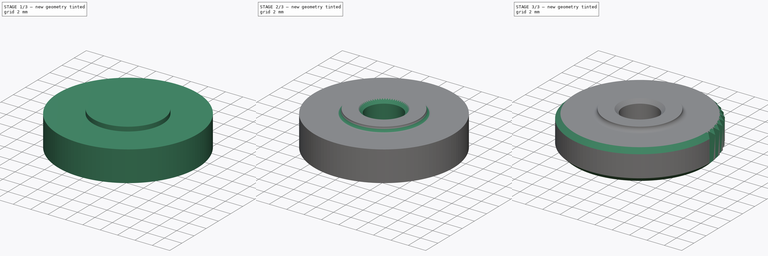
[diagram: build sequence overview — one tinted view per stage of 3, left to right]
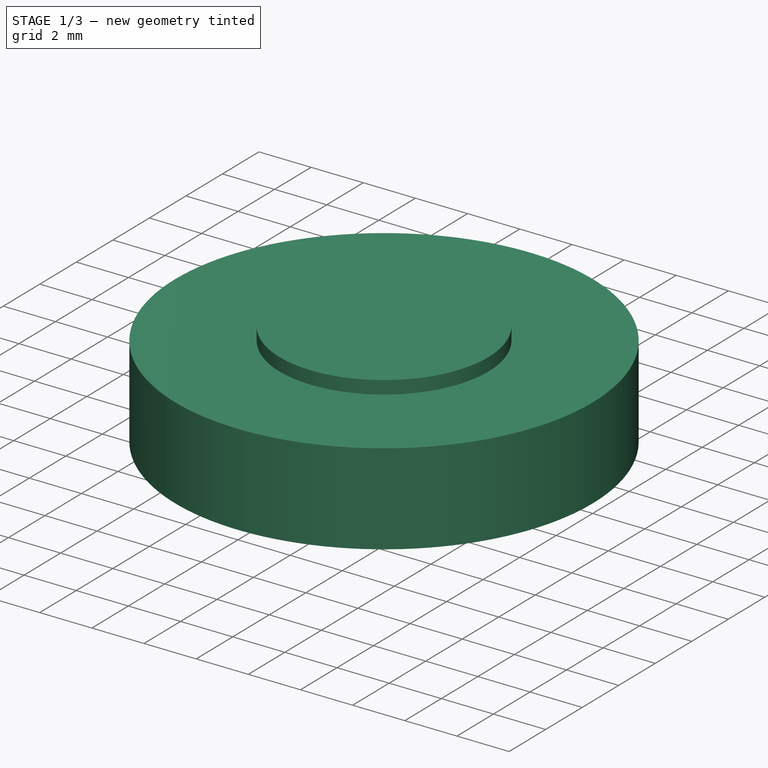
[diagram: stage 1 of 3 — iso view after this stage's code; geometry added in this stage tinted green]
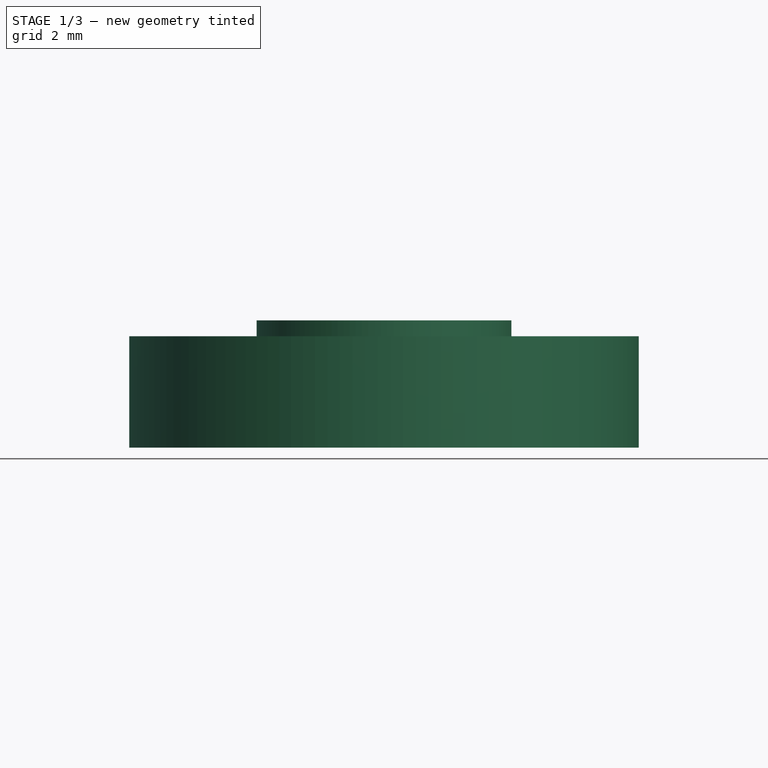
[diagram: stage 1 of 3 — front view after this stage's code; geometry added in this stage tinted green]
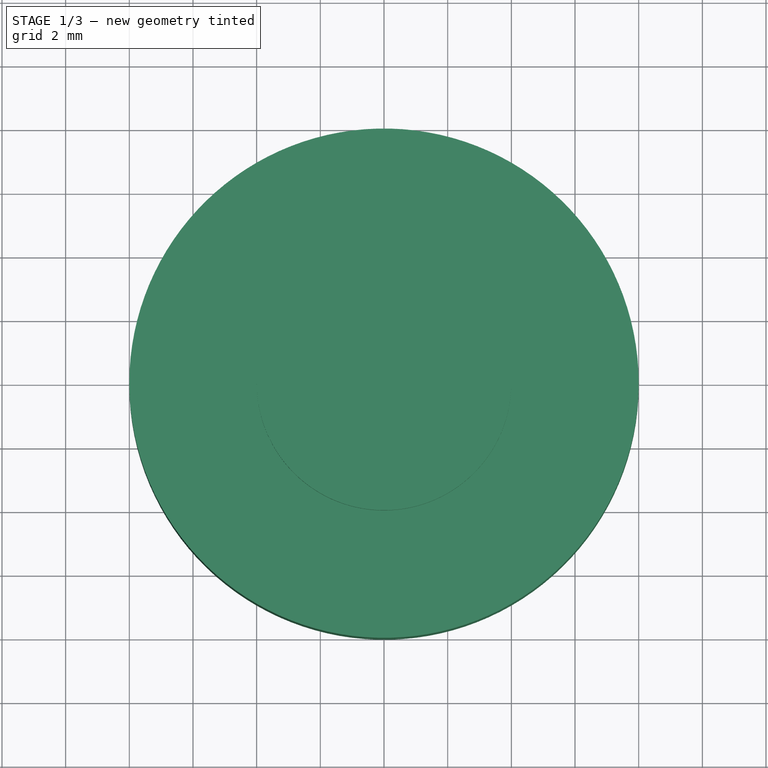
[diagram: stage 1 of 3 — top view after this stage's code; geometry added in this stage tinted green]
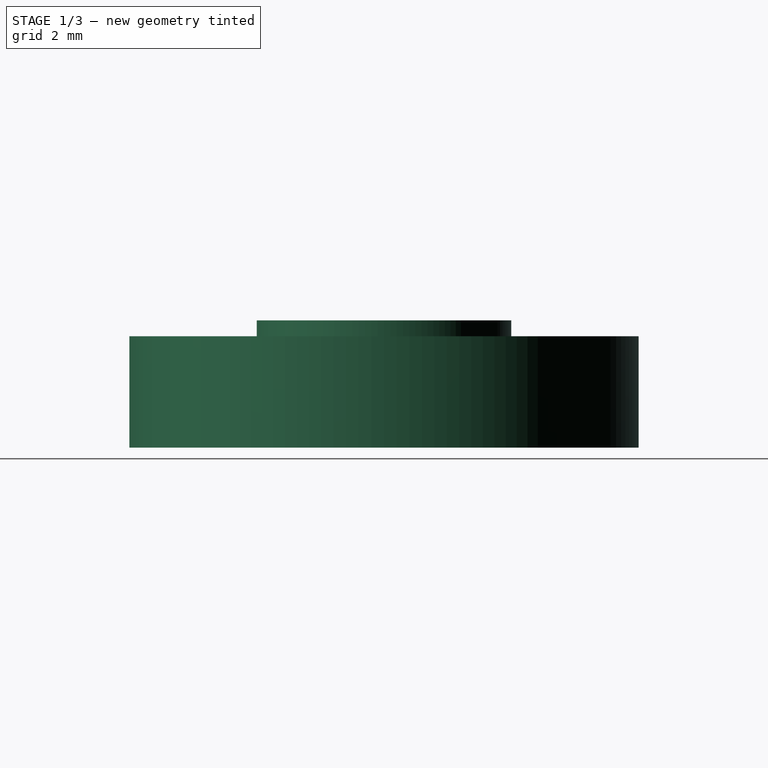
[diagram: stage 1 of 3 — right view after this stage's code; geometry added in this stage tinted green]
FCSTD DOCUMENT  (FreeCAD 0.14R3310 (Git))
Label: 40. FLAT KNURLED NUTS DIN 467 M4
License: CC-BY 3.0
LicenseURL: http://creativecommons.org/licenses/by/3.0/
objects: Sketcher::SketchObject×4, PartDesign::Pad×2, PartDesign::Pocket×2, PartDesign::Chamfer×2, PartDesign::Fillet×1
note: 15 computed .brp shape members not serialized (recipe doc carries the construction recipe); baked Part::Feature solids carry a one-line shape summary decoded from their .brp

FEATURE [Sketcher::SketchObject] Sketch
  sketch-geometry (1):
    g0: Circle CenterX=0 CenterY=0 CenterZ=0 NormalX=0 NormalY=0 NormalZ=1 Radius=8
  constraints (2):
    c: Coincident(g0,g-1)
    c: Radius(g0) = 8
FEATURE [PartDesign::Pad] Pad
  Length = 3.5
  Length2 = 100
  Sketch = -> Sketch
  Type = 0
FEATURE [Sketcher::SketchObject] Sketch001
  Placement = pos=(0,0,3.5) rot=(0,0,1;0rad)
  Support = -> Pad [Face3]
  sketch-geometry (1):
    g0: Circle CenterX=0 CenterY=0 CenterZ=0 NormalX=0 NormalY=0 NormalZ=1 Radius=4
  constraints (2):
    c: Coincident(g0,g-1)
    c: Radius(g0) = 4
FEATURE [PartDesign::Pad] Pad001
  Length = 0.5
  Length2 = 100
  Sketch = -> Sketch001
  Type = 0
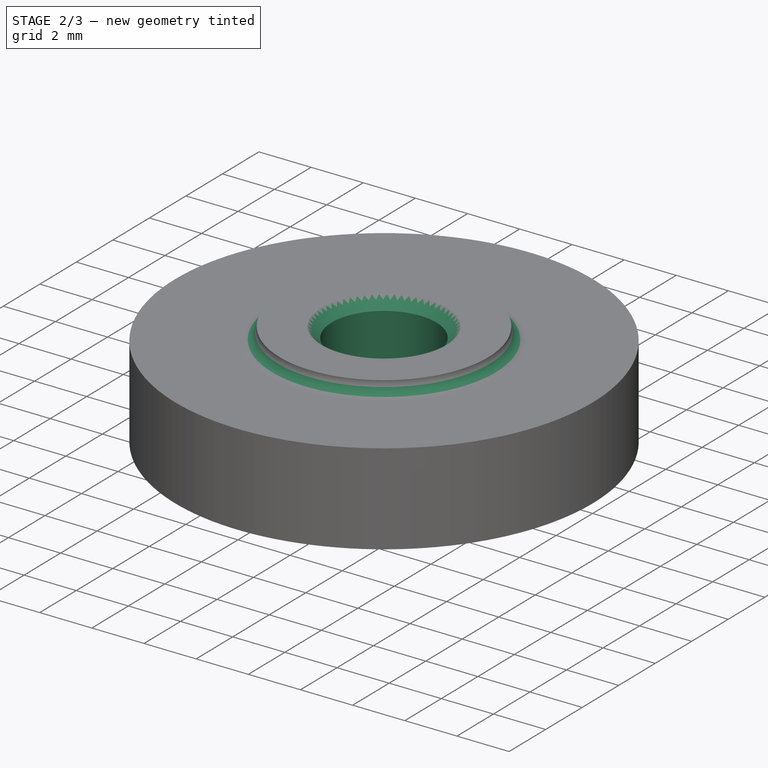
[diagram: stage 2 of 3 — iso view after this stage's code; geometry added in this stage tinted green]
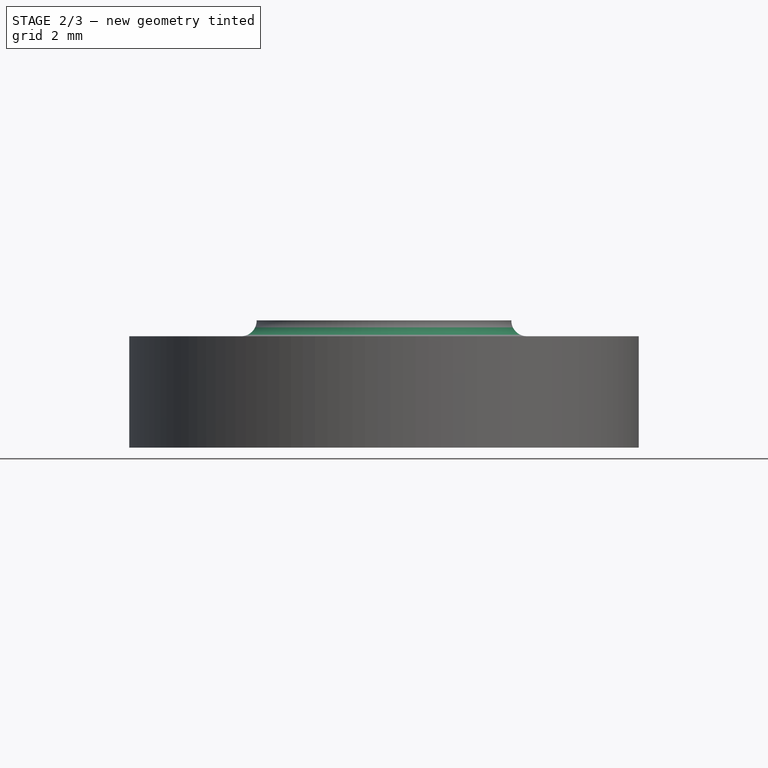
[diagram: stage 2 of 3 — front view after this stage's code; geometry added in this stage tinted green]
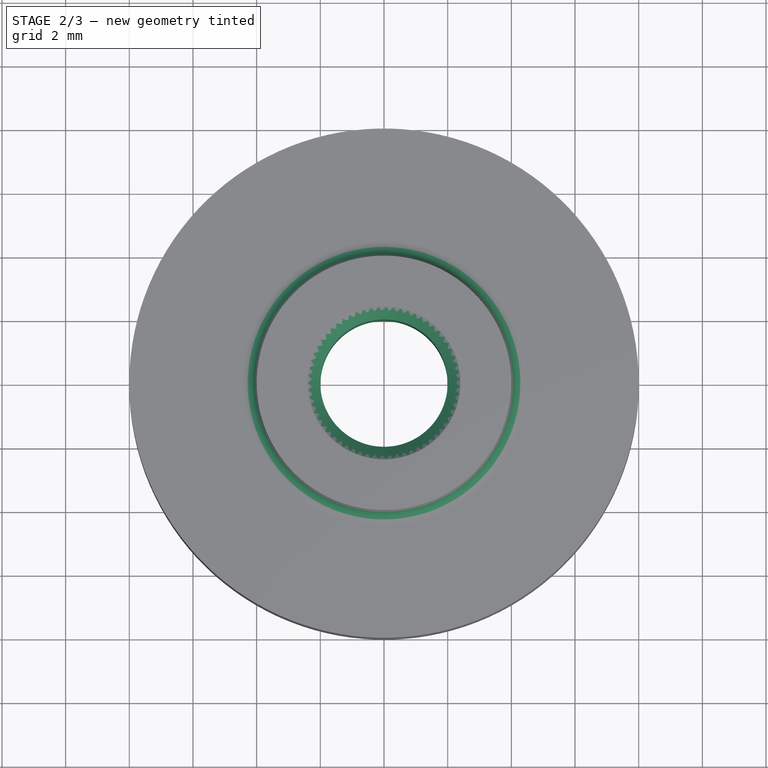
[diagram: stage 2 of 3 — top view after this stage's code; geometry added in this stage tinted green]
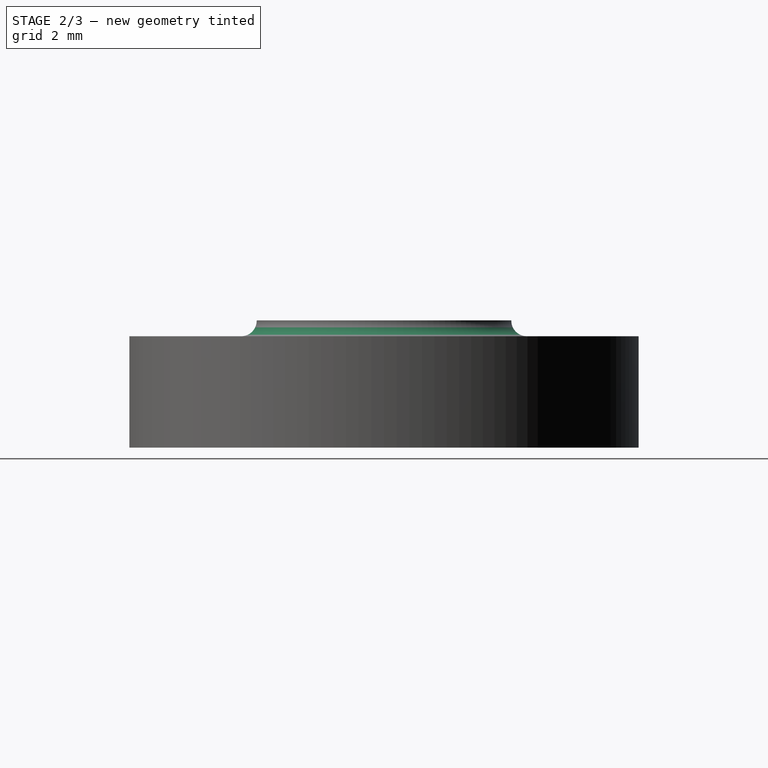
[diagram: stage 2 of 3 — right view after this stage's code; geometry added in this stage tinted green]
FEATURE [PartDesign::Fillet] Fillet
  Base = -> Pad001 [Edge4]
  Radius = 0.49
FEATURE [Sketcher::SketchObject] Sketch002
  Placement = pos=(0,0,4) rot=(0,0,1;0rad)
  Support = -> Fillet [Face6]
  sketch-geometry (1):
    g0: Circle CenterX=0 CenterY=0 CenterZ=0 NormalX=0 NormalY=0 NormalZ=1 Radius=2
  constraints (2):
    c: Coincident(g0,g-1)
    c: Radius(g0) = 2
FEATURE [PartDesign::Pocket] Pocket
  Length = 5
  Sketch = -> Sketch002
  Type = 0
FEATURE [PartDesign::Chamfer] Chamfer
  Base = -> Pocket [Edge10,Edge9]
  Size = 0.4
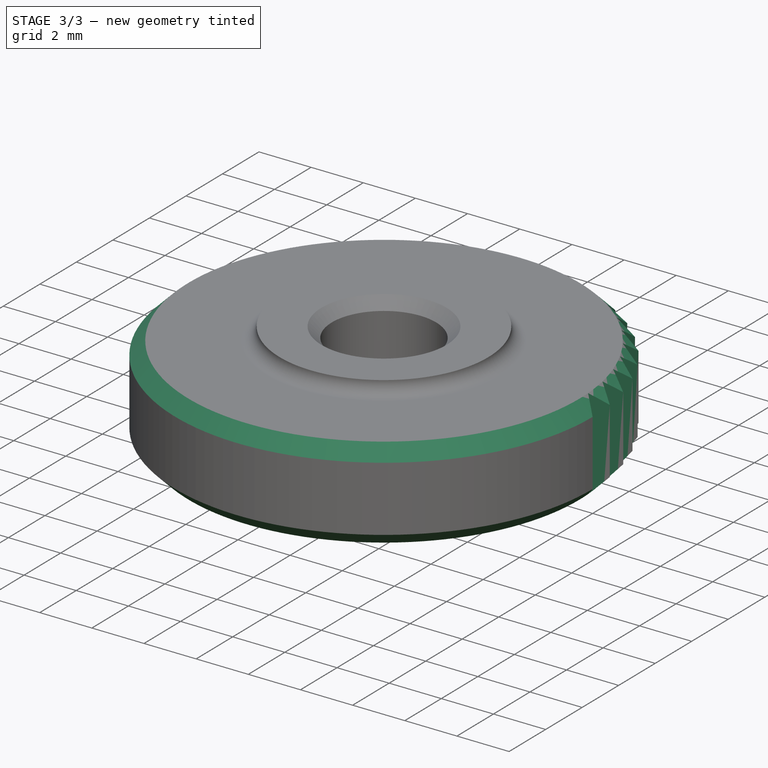
[diagram: stage 3 of 3 — iso view after this stage's code; geometry added in this stage tinted green]
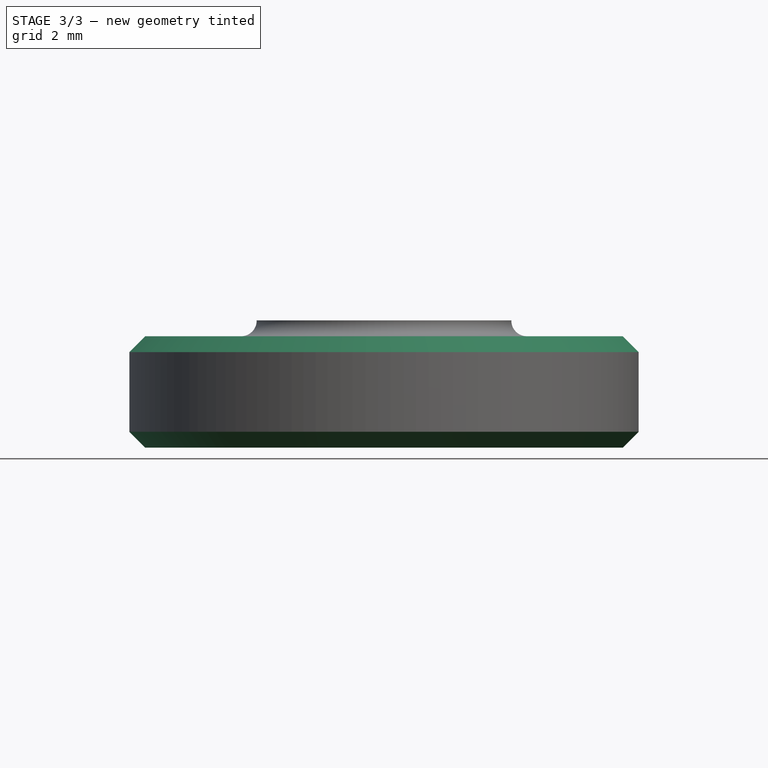
[diagram: stage 3 of 3 — front view after this stage's code; geometry added in this stage tinted green]
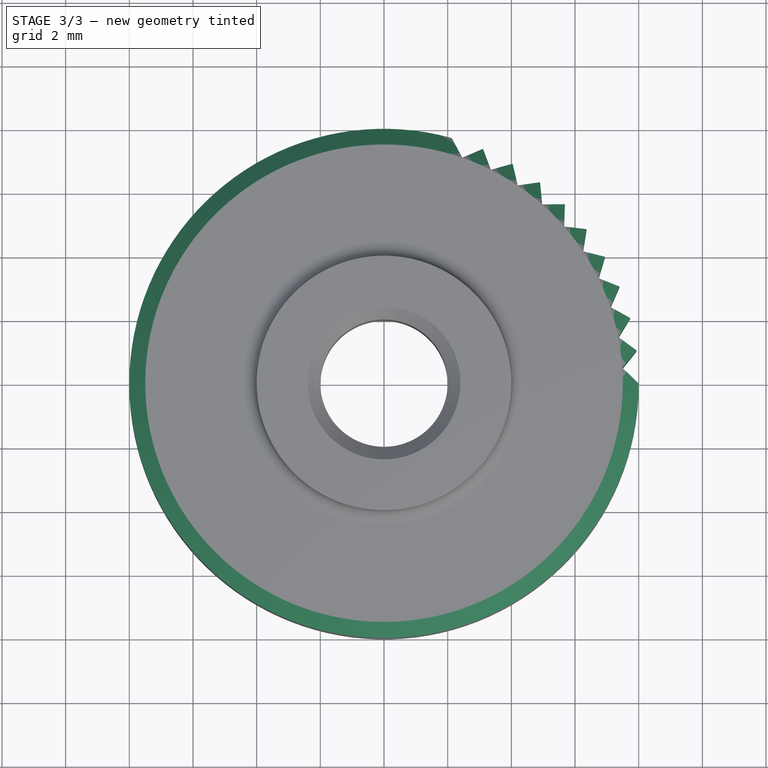
[diagram: stage 3 of 3 — top view after this stage's code; geometry added in this stage tinted green]
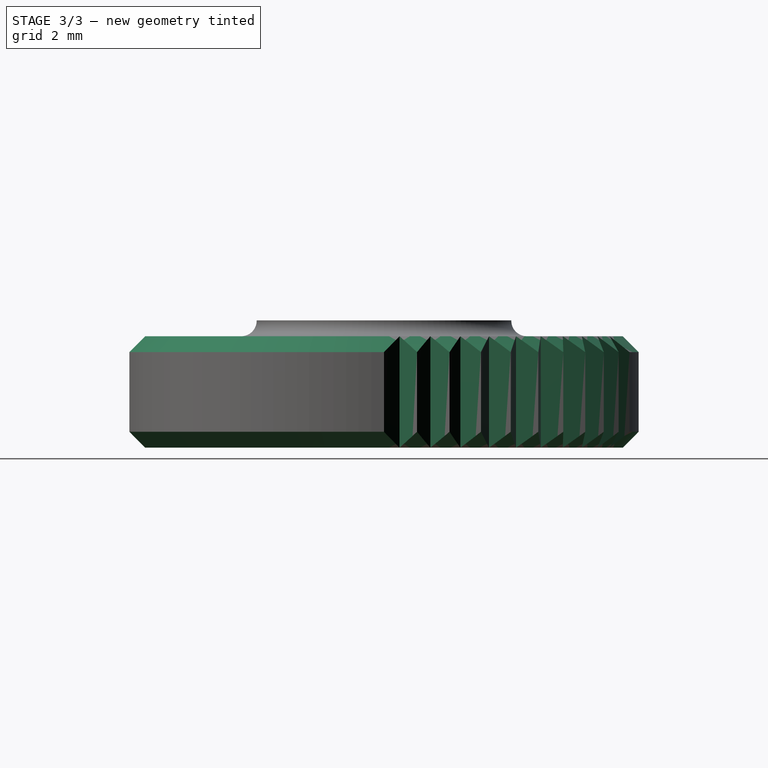
[diagram: stage 3 of 3 — right view after this stage's code; geometry added in this stage tinted green]
FEATURE [PartDesign::Chamfer] Chamfer001
  Base = -> Chamfer [Edge2,Edge6]
  Size = 0.5
FEATURE [Sketcher::SketchObject] Sketch003
  ExternalGeometry = -> [Chamfer001]
  Placement = pos=(0,0,3.5) rot=(0,0,1;0rad)
  Support = -> Chamfer001 [Face8]
  sketch-geometry (22):
    g0: ArcOfCircle [constr] CenterX=0 CenterY=0 CenterZ=0 NormalX=0 NormalY=0 NormalZ=1 Radius=8 StartAngle=0 EndAngle=1.5708
    g1: LineSegment StartX=8 StartY=0 StartZ=0 EndX=7.48412 EndY=0.487818 EndZ=0
    g2: LineSegment StartX=7.48412 StartY=0.487818 StartZ=0 EndX=7.93231 EndY=1.03848 EndZ=0
    g3: LineSegment StartX=7.93231 StartY=1.03848 StartZ=0 EndX=7.35747 EndY=1.4552 EndZ=0
    g4: LineSegment StartX=7.35747 StartY=1.4552 StartZ=0 EndX=7.73039 EndY=2.05938 EndZ=0
    g5: LineSegment StartX=7.73039 StartY=2.05938 StartZ=0 EndX=7.10632 EndY=2.39796 EndZ=0
    g6: LineSegment StartX=7.10632 StartY=2.39796 StartZ=0 EndX=7.39766 EndY=3.04543 EndZ=0
    g7: LineSegment StartX=7.39766 StartY=3.04543 StartZ=0 EndX=6.73492 EndY=3.30013 EndZ=0
    g8: LineSegment StartX=6.73492 StartY=3.30013 StartZ=0 EndX=6.93974 EndY=3.97995 EndZ=0
    g9: LineSegment StartX=6.93974 StartY=3.97995 StartZ=0 EndX=6.24954 EndY=4.14647 EndZ=0
    g10: LineSegment StartX=6.24954 StartY=4.14647 StartZ=0 EndX=6.36439 EndY=4.84712 EndZ=0
    g11: LineSegment StartX=6.36439 StartY=4.84712 StartZ=0 EndX=5.65842 EndY=4.92263 EndZ=0
    g12: LineSegment StartX=5.65842 StartY=4.92263 StartZ=0 EndX=5.68134 EndY=5.63226 EndZ=0
    g13: LineSegment StartX=5.68134 StartY=5.63226 StartZ=0 EndX=4.97154 EndY=5.6155 EndZ=0
    g14: LineSegment StartX=4.97154 StartY=5.6155 StartZ=0 EndX=4.90215 EndY=6.3221 EndZ=0
    g15: LineSegment StartX=4.90215 StartY=6.3221 StartZ=0 EndX=4.20053 EndY=6.21334 EndZ=0
    g16: LineSegment StartX=4.20053 StartY=6.21334 StartZ=0 EndX=4.04 EndY=6.90495 EndZ=0
    g17: LineSegment StartX=4.04 StartY=6.90495 StartZ=0 EndX=3.35844 EndY=6.70603 EndZ=0
    g18: LineSegment StartX=3.35844 StartY=6.70603 StartZ=0 EndX=3.10949 EndY=7.37096 EndZ=0
    g19: LineSegment StartX=3.10949 StartY=7.37096 StartZ=0 EndX=2.45952 EndY=7.08525 EndZ=0
    g20: LineSegment StartX=2.45952 StartY=7.08525 StartZ=0 EndX=2.12636 EndY=7.71224 EndZ=0
    g21: ArcOfCircle CenterX=4.08707 CenterY=3.11271 CenterZ=0 NormalX=0 NormalY=0 NormalZ=1 Radius=5 StartAngle=5.6112 EndAngle=8.25694
  constraints (67):
    c: Coincident(g0,g-1)
    c: PointOnObject(g0,g-1)
    c: PointOnObject(g0,g-2)
    c: Radius(g0) = 8
    c: Coincident(g1,g0)
    c: PointOnObject(g1,g-3)
    c: Distance(g1) = 0.71
    c: Coincident(g2,g1)
    c: PointOnObject(g2,g0)
    c: Equal(g2,g1)
    c: Coincident(g2,g3)
    c: PointOnObject(g3,g-3)
    c: Coincident(g3,g4)
    c: PointOnObject(g4,g0)
    c: Coincident(g4,g5)
    c: PointOnObject(g5,g-3)
    c: Coincident(g5,g6)
    c: PointOnObject(g6,g0)
    c: Coincident(g6,g7)
    c: PointOnObject(g7,g-3)
    c: Coincident(g7,g8)
    c: PointOnObject(g8,g0)
    c: Coincident(g8,g9)
    c: PointOnObject(g9,g-3)
    c: Coincident(g9,g10)
    c: PointOnObject(g10,g0)
    c: Coincident(g10,g11)
    c: PointOnObject(g11,g-3)
    c: Coincident(g11,g12)
    c: PointOnObject(g12,g0)
    c: Equal(g3,g4)
    c: Equal(g4,g5)
    c: Equal(g5,g6)
    c: Equal(g6,g7)
    c: Equal(g7,g8)
    c: Equal(g8,g9)
    c: Equal(g9,g10)
    c: Equal(g10,g11)
    c: Equal(g11,g12)
    c: Equal(g12,g2)
    c: Coincident(g12,g13)
    c: PointOnObject(g13,g-3)
    c: Coincident(g13,g14)
    c: PointOnObject(g14,g0)
    c: Coincident(g14,g15)
    c: PointOnObject(g15,g-3)
    c: Coincident(g15,g16)
    c: PointOnObject(g16,g0)
    c: Coincident(g16,g17)
    c: PointOnObject(g17,g-3)
    c: Coincident(g17,g18)
    c: PointOnObject(g18,g0)
    c: Coincident(g18,g19)
    c: PointOnObject(g19,g-3)
    c: Coincident(g19,g20)
    c: PointOnObject(g20,g0)
    c: Equal(g20,g19)
    c: Equal(g19,g18)
    c: Equal(g18,g17)
    c: Equal(g17,g16)
    c: Equal(g16,g15)
    c: Equal(g15,g14)
    c: Equal(g14,g13)
    c: Equal(g12,g13)
    c: Coincident(g21,g20)
    c: Coincident(g21,g0)
    c: Radius(g21) = 5
FEATURE [PartDesign::Pocket] Pocket001
  Length = 5
  Sketch = -> Sketch003
  Type = 0
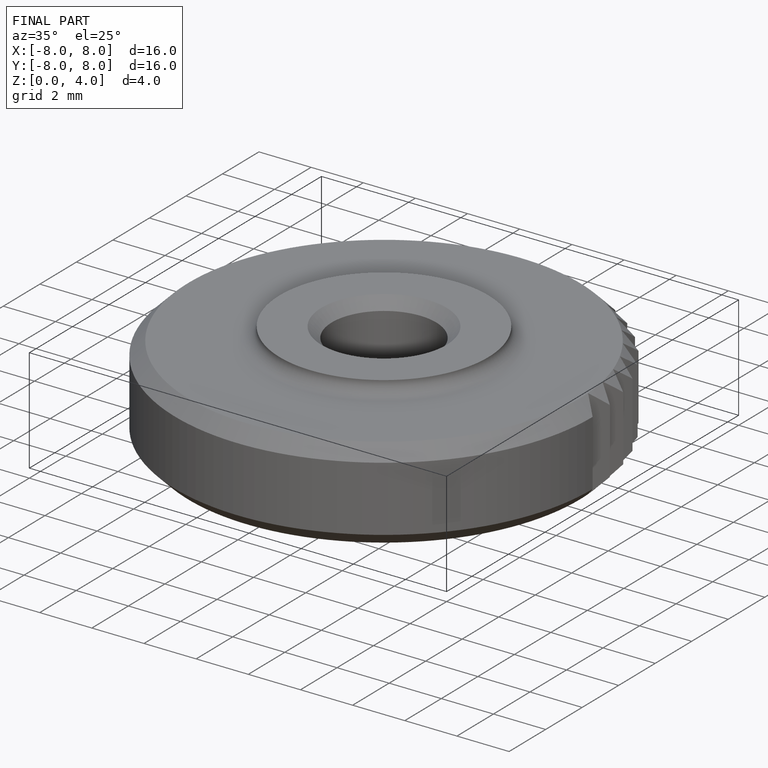
[diagram: finished part — iso view with bounding-box wireframe]
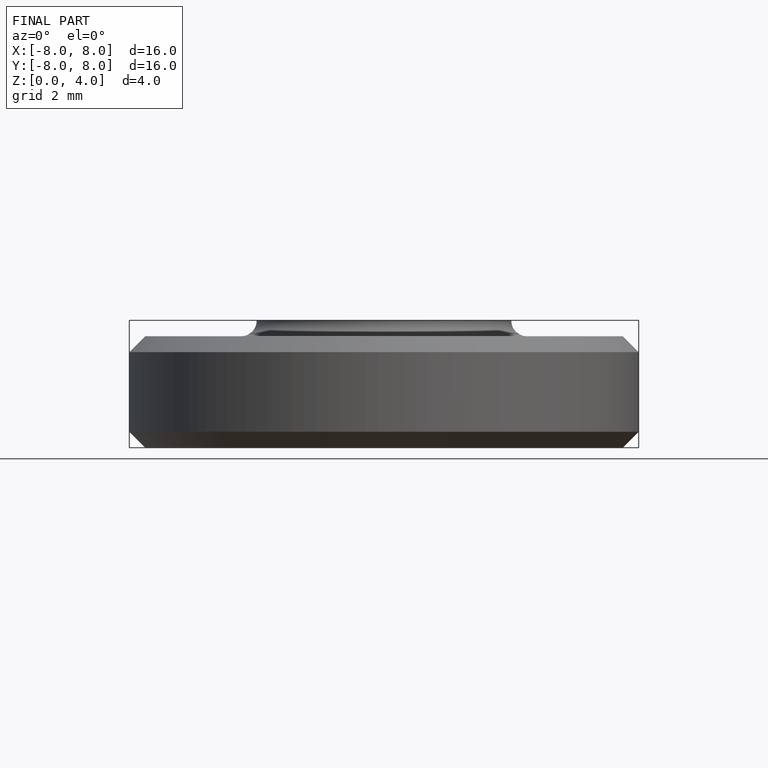
[diagram: finished part — front view with bounding-box wireframe]
